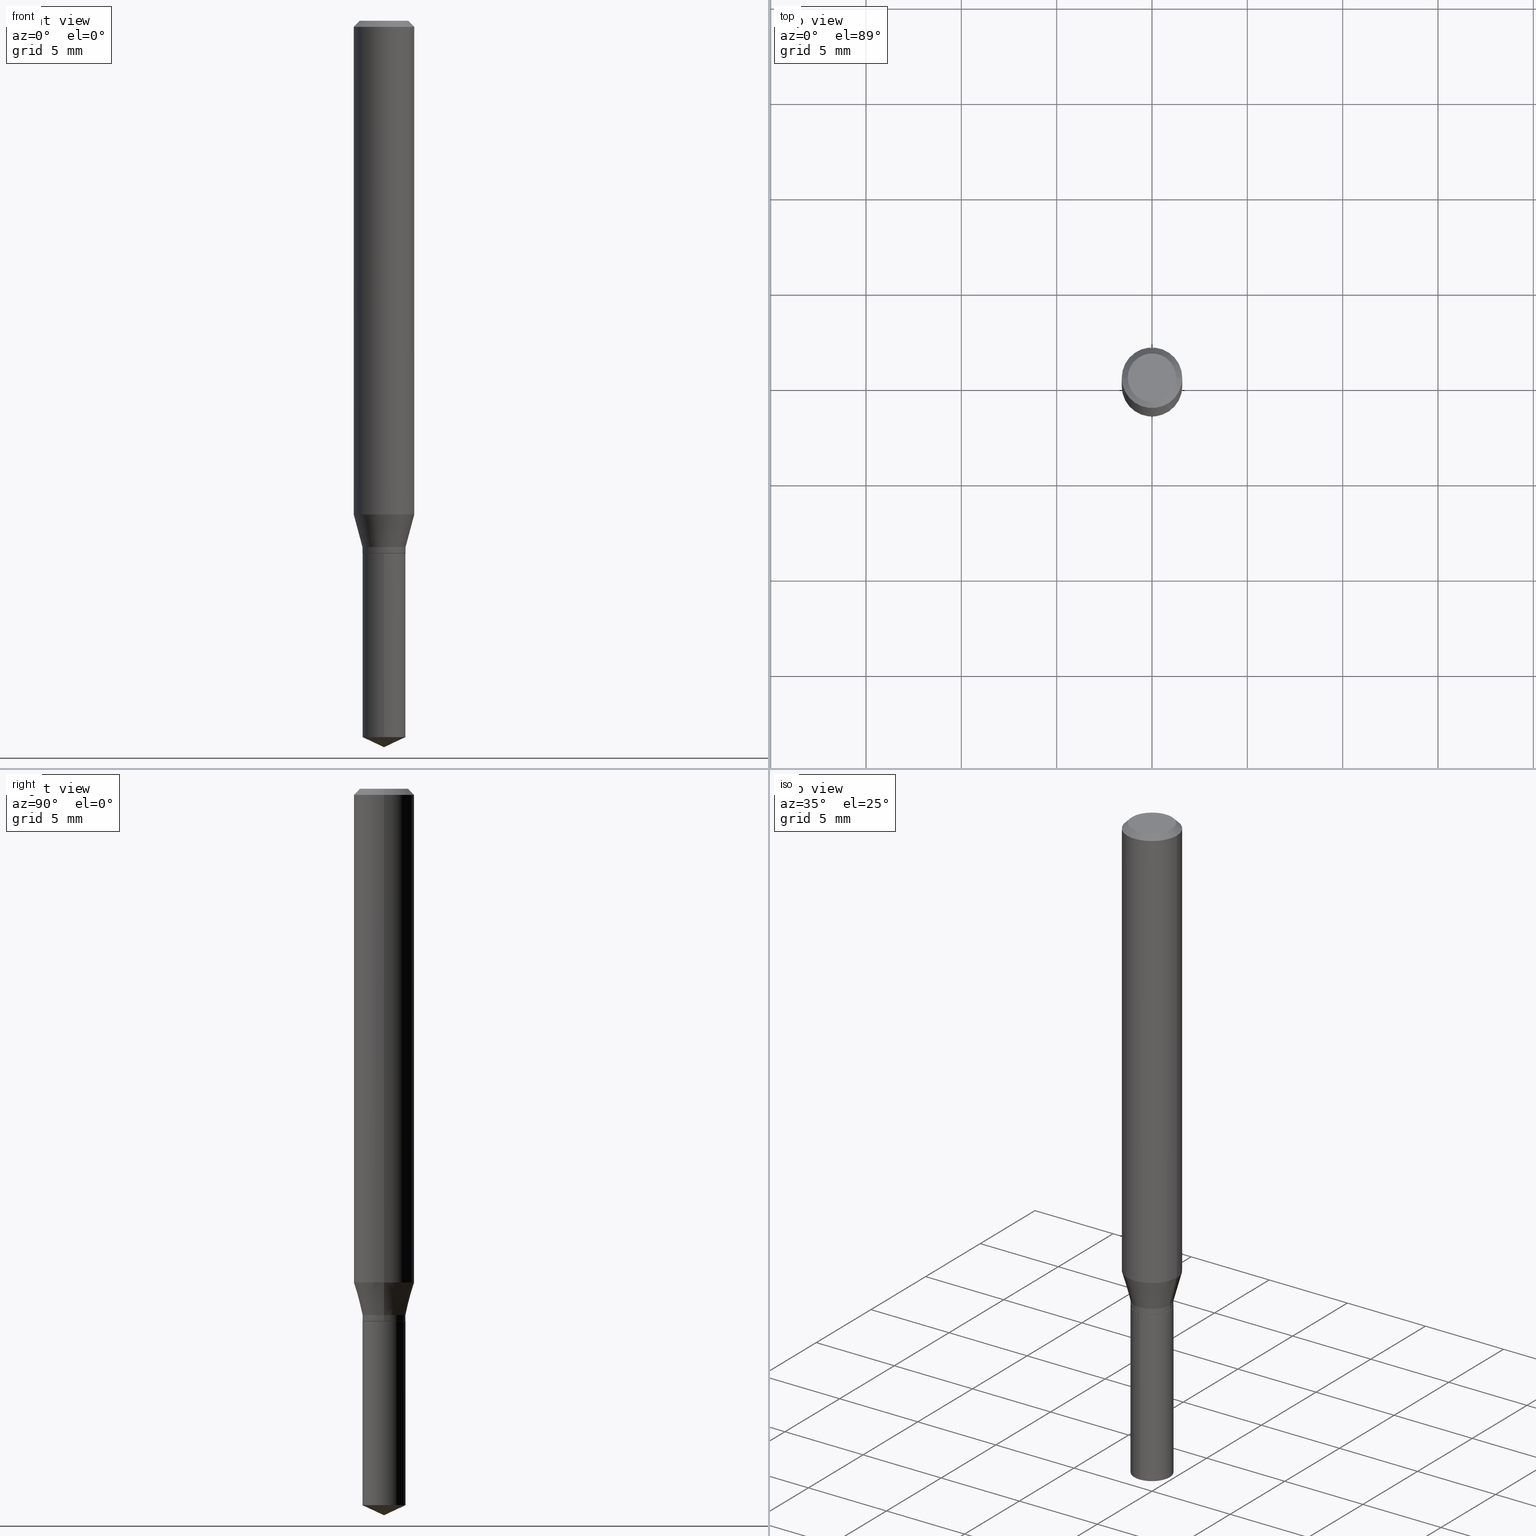
[diagram: canonical four-view strip — front | top / right | iso, engineering-drawing reading convention]
A machine part, canonical four-view strip (front | top / right | iso — engineering-drawing reading convention). The complete STEP part file that produces these views, byte-faithful:
ISO-10303-21;
HEADER;
FILE_DESCRIPTION (( 'STEP AP203' ),
    '1' );
FILE_NAME ('07366.STEP',
    '2024-04-23T20:46:41',
    ( '' ),
    ( '' ),
    'SwSTEP 2.0',
    'SolidWorks 2023',
    '' );
FILE_SCHEMA (( 'CONFIG_CONTROL_DESIGN' ));
ENDSEC;

DATA;
#1 = APPROVAL ( #476, 'UNSPECIFIED' ) ;
#2 = DIRECTION ( 'NONE',  ( -6.982962677686265922E-15, -1.000000000000000000, 6.138984255425310648E-15 ) ) ;
#3 = CALENDAR_DATE ( 2024, 23, 4 ) ;
#4 = DIRECTION ( 'NONE',  ( -2.445468806185136597E-29, 3.491481338843145583E-15, 1.000000000000000000 ) ) ;
#5 = AXIS2_PLACEMENT_3D ( 'NONE', #191, #232, #126 ) ;
#6 = EDGE_CURVE ( 'NONE', #120, #266, #114, .T. ) ;
#7 = EDGE_LOOP ( 'NONE', ( #80, #142, #286, #357 ) ) ;
#8 = FACE_OUTER_BOUND ( 'NONE', #7, .T. ) ;
#9 = EDGE_CURVE ( 'NONE', #449, #401, #156, .T. ) ;
#10 = CARTESIAN_POINT ( 'NONE',  ( -3.107418391570026875E-16, -0.04450000000000516043, -1.479249309212102403 ) ) ;
#11 = AXIS2_PLACEMENT_3D ( 'NONE', #474, #285, #143 ) ;
#12 = AXIS2_PLACEMENT_3D ( 'NONE', #192, #194, #36 ) ;
#13 = CARTESIAN_POINT ( 'NONE',  ( 0.04999999999999999584, -4.077247707424184705E-16, -1.592040838888913461E-18 ) ) ;
#14 = DIRECTION ( 'NONE',  ( 6.982962677686265922E-15, 1.000000000000000000, -3.491580316559632610E-15 ) ) ;
#15 = PRODUCT ( '07366', '07366', '', ( #119 ) ) ;
#16 = CARTESIAN_POINT ( 'NONE',  ( 3.056836007731442729E-31, -4.364351673553962300E-17, -0.01250000000000008916 ) ) ;
#17 = AXIS2_PLACEMENT_3D ( 'NONE', #16, #386, #206 ) ;
#18 = CARTESIAN_POINT ( 'NONE',  ( -0.06250000000000001388, 3.927916506198521080E-16, -0.01250000000000008916 ) ) ;
#19 = AXIS2_PLACEMENT_3D ( 'NONE', #477, #141, #293 ) ;
#20 = EDGE_CURVE ( 'NONE', #63, #219, #179, .T. ) ;
#21 = ORIENTED_EDGE ( 'NONE', *, *, #455, .T. ) ;
#22 = APPROVAL_ROLE ( '' ) ;
#23 = DIRECTION ( 'NONE',  ( 0.7071067811865453523, -7.319954787623248157E-15, -0.7071067811865496822 ) ) ;
#24 = EDGE_LOOP ( 'NONE', ( #73, #373, #297, #370 ) ) ;
#25 = SECURITY_CLASSIFICATION_LEVEL ( 'unclassified' ) ;
#26 = DIRECTION ( 'NONE',  ( 1.000000000000000000, -6.982962677686267499E-15, 0.000000000000000000 ) ) ;
#27 = ORIENTED_EDGE ( 'NONE', *, *, #393, .F. ) ;
#28 = APPROVAL_ROLE ( '' ) ;
#29 = CARTESIAN_POINT ( 'NONE',  ( 3.617431830141075089E-29, -5.164808895841274999E-15, -1.479249309212102625 ) ) ;
#30 = LOCAL_TIME ( 16, 46, 41.00000000000000000, #103 ) ;
#31 = ORIENTED_EDGE ( 'NONE', *, *, #376, .F. ) ;
#32 = EDGE_CURVE ( 'NONE', #335, #41, #311, .T. ) ;
#33 = CARTESIAN_POINT ( 'NONE',  ( 0.000000000000000000, 0.000000000000000000, 0.000000000000000000 ) ) ;
#34 = ORIENTED_EDGE ( 'NONE', *, *, #424, .T. ) ;
#35 = DATE_AND_TIME ( #249, #277 ) ;
#36 = DIRECTION ( 'NONE',  ( -6.982962677686265922E-15, -1.000000000000000000, 3.069492127712655324E-15 ) ) ;
#37 = ORIENTED_EDGE ( 'NONE', *, *, #99, .F. ) ;
#38 = COORDINATED_UNIVERSAL_TIME_OFFSET ( 5, 0, .BEHIND. ) ;
#39 = CARTESIAN_POINT ( 'NONE',  ( -0.04449999999999999789, -3.477652105373717759E-15, -1.086600000000000010 ) ) ;
#40 = VECTOR ( 'NONE', #336, 39.37007874015748143 ) ;
#41 = VERTEX_POINT ( 'NONE', #306 ) ;
#42 = PERSON_AND_ORGANIZATION ( #305, #478 ) ;
#43 = CARTESIAN_POINT ( 'NONE',  ( 2.690015686803650369E-29, -3.840629472727460101E-15, -1.100000000000000089 ) ) ;
#44 = CARTESIAN_POINT ( 'NONE',  ( 3.893286209682126177E-47, -5.558580879666067980E-33, -1.592040838891559689E-18 ) ) ;
#45 = AXIS2_PLACEMENT_3D ( 'NONE', #91, #467, #469 ) ;
#46 = CIRCLE ( 'NONE', #402, 0.04449999999999999789 ) ;
#47 = EDGE_CURVE ( 'NONE', #182, #109, #202, .T. ) ;
#48 = LINE ( 'NONE', #201, #420 ) ;
#49 = CARTESIAN_POINT ( 'NONE',  ( 3.668099535622682155E-29, -5.237370474839448718E-15, -1.500000000000000222 ) ) ;
#50 = DIRECTION ( 'NONE',  ( -6.982962677686265922E-15, -1.000000000000000000, 3.069492127712655324E-15 ) ) ;
#51 = ADVANCED_FACE ( 'NONE', ( #228 ), #238, .T. ) ;
#52 = VECTOR ( 'NONE', #89, 39.37007874015748143 ) ;
#53 = PRODUCT_DEFINITION_FORMATION_WITH_SPECIFIED_SOURCE ( 'ANY', '', #15, .NOT_KNOWN. ) ;
#54 = CARTESIAN_POINT ( 'NONE',  ( 0.04399999999999999745, -4.147879830545655774E-15, -1.100000000000000089 ) ) ;
#55 = ORIENTED_EDGE ( 'NONE', *, *, #20, .F. ) ;
#56 = PLANE ( 'NONE',  #314 ) ;
#57 = EDGE_LOOP ( 'NONE', ( #135, #404, #300, #96 ) ) ;
#58 = ADVANCED_FACE ( 'NONE', ( #85 ), #271, .T. ) ;
#59 = DIRECTION ( 'NONE',  ( -2.445468806185136597E-29, 3.491481338843145583E-15, 1.000000000000000000 ) ) ;
#60 = AXIS2_PLACEMENT_3D ( 'NONE', #354, #129, #280 ) ;
#61 = CARTESIAN_POINT ( 'NONE',  ( 0.04449999999999999789, -4.104585461944000907E-15, -1.086600000000000010 ) ) ;
#62 = CIRCLE ( 'NONE', #239, 0.06250000000000001388 ) ;
#63 = VERTEX_POINT ( 'NONE', #487 ) ;
#64 = DIRECTION ( 'NONE',  ( -2.445468806185136597E-29, 3.491481338843145583E-15, 1.000000000000000000 ) ) ;
#65 = ADVANCED_FACE ( 'NONE', ( #153 ), #302, .T. ) ;
#66 = ORIENTED_EDGE ( 'NONE', *, *, #167, .T. ) ;
#67 = DATE_TIME_ROLE ( 'classification_date' ) ;
#68 = CARTESIAN_POINT ( 'NONE',  ( 3.161915174132713890E-16, 0.04449999999999615374, -1.100000000000000089 ) ) ;
#69 = ORIENTED_EDGE ( 'NONE', *, *, #279, .T. ) ;
#70 = APPLICATION_CONTEXT ( 'configuration controlled 3d designs of mechanical parts and assemblies' ) ;
#71 = CARTESIAN_POINT ( 'NONE',  ( -0.04449999999999999789, -3.500172160009255549E-15, -1.086600000000000010 ) ) ;
#72 = CIRCLE ( 'NONE', #123, 0.06250000000000001388 ) ;
#73 = ORIENTED_EDGE ( 'NONE', *, *, #213, .F. ) ;
#74 = APPLICATION_PROTOCOL_DEFINITION ( 'international standard', 'config_control_design', 1994, #92 ) ;
#75 = ORIENTED_EDGE ( 'NONE', *, *, #225, .T. ) ;
#76 = LENGTH_MEASURE_WITH_UNIT ( LENGTH_MEASURE( 0.02539999999999999897 ), #343 );
#77 = ADVANCED_FACE ( 'NONE', ( #307 ), #254, .T. ) ;
#78 = DIRECTION ( 'NONE',  ( -2.445468806185136597E-29, 3.491481338843145583E-15, 1.000000000000000000 ) ) ;
#79 = CARTESIAN_POINT ( 'NONE',  ( -0.04399999999999999745, -3.525341441818904541E-15, -1.100000000000000089 ) ) ;
#80 = ORIENTED_EDGE ( 'NONE', *, *, #279, .F. ) ;
#81 = AXIS2_PLACEMENT_3D ( 'NONE', #44, #382, #150 ) ;
#82 = DIRECTION ( 'NONE',  ( 0.000000000000000000, 0.000000000000000000, 1.000000000000000000 ) ) ;
#83 = CARTESIAN_POINT ( 'NONE',  ( 3.668099535622682715E-29, -5.237370474839449507E-15, -1.500000000000000222 ) ) ;
#84 = EDGE_CURVE ( 'NONE', #155, #475, #162, .T. ) ;
#85 = FACE_OUTER_BOUND ( 'NONE', #450, .T. ) ;
#86 = DIRECTION ( 'NONE',  ( -2.445399690415121530E-29, 3.491580316559632610E-15, 1.000000000000000000 ) ) ;
#87 = CIRCLE ( 'NONE', #488, 0.04449999999999999789 ) ;
#88 = AXIS2_PLACEMENT_3D ( 'NONE', #415, #413, #268 ) ;
#89 = DIRECTION ( 'NONE',  ( -2.445399690415121810E-29, 3.491580316559632610E-15, 1.000000000000000000 ) ) ;
#90 = CYLINDRICAL_SURFACE ( 'NONE', #45, 0.06250000000000006939 ) ;
#91 = CARTESIAN_POINT ( 'NONE',  ( 0.000000000000000000, 0.000000000000000000, 0.000000000000000000 ) ) ;
#92 = APPLICATION_CONTEXT ( 'configuration controlled 3d designs of mechanical parts and assemblies' ) ;
#93 = CLOSED_SHELL ( 'NONE', ( #121, #77, #284, #116, #147 ) ) ;
#94 = CONICAL_SURFACE ( 'NONE', #391, 0.06250000000000001388, 0.7853981633974452814 ) ;
#95 = FACE_OUTER_BOUND ( 'NONE', #392, .T. ) ;
#96 = ORIENTED_EDGE ( 'NONE', *, *, #424, .F. ) ;
#97 = ADVANCED_FACE ( 'NONE', ( #304 ), #468, .T. ) ;
#98 = DIRECTION ( 'NONE',  ( 1.000000000000000000, -6.982962677686265922E-15, 4.876176775795935232E-29 ) ) ;
#99 = EDGE_CURVE ( 'NONE', #267, #248, #118, .T. ) ;
#100 = DIRECTION ( 'NONE',  ( -2.445468806185136597E-29, 3.491481338843145583E-15, 1.000000000000000000 ) ) ;
#101 = ORIENTED_EDGE ( 'NONE', *, *, #396, .F. ) ;
#102 = MANIFOLD_SOLID_BREP ( 'Body-Move/Copy2[1]', #93 ) ;
#103 = COORDINATED_UNIVERSAL_TIME_OFFSET ( 5, 0, .BEHIND. ) ;
#104 = VECTOR ( 'NONE', #130, 39.37007874015748854 ) ;
#105 = AXIS2_PLACEMENT_3D ( 'NONE', #33, #184, #98 ) ;
#106 = CARTESIAN_POINT ( 'NONE',  ( 0.06250000000000012490, -3.995731846638011698E-15, -1.019423085463760037 ) ) ;
#107 = VERTEX_POINT ( 'NONE', #83 ) ;
#108 = LINE ( 'NONE', #230, #180 ) ;
#109 = VERTEX_POINT ( 'NONE', #205 ) ;
#110 = MANIFOLD_SOLID_BREP ( 'Body-Move/Copy2[2]', #289 ) ;
#111 = CARTESIAN_POINT ( 'NONE',  ( 3.056836007731442729E-31, -4.364351673553962300E-17, -0.01250000000000008916 ) ) ;
#112 = ORIENTED_EDGE ( 'NONE', *, *, #9, .T. ) ;
#113 =( CONVERSION_BASED_UNIT ( 'INCH', #76 ) LENGTH_UNIT ( ) NAMED_UNIT ( #473 ) );
#114 = CIRCLE ( 'NONE', #81, 0.04999999999999999584 ) ;
#115 = EDGE_LOOP ( 'NONE', ( #166, #423, #34, #262 ) ) ;
#116 = ADVANCED_FACE ( 'NONE', ( #8 ), #352, .T. ) ;
#117 = DATE_AND_TIME ( #303, #211 ) ;
#118 = LINE ( 'NONE', #39, #149 ) ;
#119 = MECHANICAL_CONTEXT ( 'NONE', #70, 'mechanical' ) ;
#120 = VERTEX_POINT ( 'NONE', #13 ) ;
#121 = ADVANCED_FACE ( 'NONE', ( #276 ), #200, .T. ) ;
#122 = DIRECTION ( 'NONE',  ( -0.2588190451025211836, 5.211531920934547886E-15, 0.9659258262890679791 ) ) ;
#123 = AXIS2_PLACEMENT_3D ( 'NONE', #295, #64, #287 ) ;
#124 = CARTESIAN_POINT ( 'NONE',  ( 0.06250000000000006939, -4.364351673553921624E-16, 3.047610484872463374E-30 ) ) ;
#125 = EDGE_CURVE ( 'NONE', #107, #109, #48, .T. ) ;
#126 = DIRECTION ( 'NONE',  ( 1.000000000000000000, -6.982962677686267499E-15, 0.000000000000000000 ) ) ;
#127 = DIRECTION ( 'NONE',  ( 2.445399690415121250E-29, -3.491580316559632610E-15, -1.000000000000000000 ) ) ;
#128 = LINE ( 'NONE', #319, #264 ) ;
#129 = DIRECTION ( 'NONE',  ( -2.445468806185136597E-29, 3.491481338843145583E-15, 1.000000000000000000 ) ) ;
#130 = DIRECTION ( 'NONE',  ( 0.2588190451025211836, 1.565188264969622559E-15, 0.9659258262890679791 ) ) ;
#131 = AXIS2_PLACEMENT_3D ( 'NONE', #161, #318, #430 ) ;
#132 = LINE ( 'NONE', #389, #104 ) ;
#133 = ADVANCED_FACE ( 'NONE', ( #168 ), #199, .F. ) ;
#134 = DIRECTION ( 'NONE',  ( -2.445468806185136877E-29, 3.491481338843145188E-15, 1.000000000000000000 ) ) ;
#135 = ORIENTED_EDGE ( 'NONE', *, *, #6, .F. ) ;
#136 = CARTESIAN_POINT ( 'NONE',  ( 3.893286209682126177E-47, -5.558580879666067980E-33, -1.592040838891559689E-18 ) ) ;
#137 = ORIENTED_EDGE ( 'NONE', *, *, #393, .T. ) ;
#138 = AXIS2_PLACEMENT_3D ( 'NONE', #240, #164, #281 ) ;
#139 = EDGE_CURVE ( 'NONE', #182, #449, #242, .T. ) ;
#140 = CIRCLE ( 'NONE', #190, 0.04449999999999999789 ) ;
#141 = DIRECTION ( 'NONE',  ( -2.445468806185136597E-29, 3.491481338843145583E-15, 1.000000000000000000 ) ) ;
#142 = ORIENTED_EDGE ( 'NONE', *, *, #376, .T. ) ;
#143 = DIRECTION ( 'NONE',  ( -6.982962677686267499E-15, -1.000000000000000000, 3.520397390770472803E-15 ) ) ;
#144 = ORIENTED_EDGE ( 'NONE', *, *, #84, .F. ) ;
#145 = DIRECTION ( 'NONE',  ( 2.445468806185136597E-29, -3.491481338843145583E-15, -1.000000000000000000 ) ) ;
#146 = ORIENTED_EDGE ( 'NONE', *, *, #32, .T. ) ;
#147 = ADVANCED_FACE ( 'NONE', ( #435 ), #56, .F. ) ;
#148 = FACE_OUTER_BOUND ( 'NONE', #414, .T. ) ;
#149 = VECTOR ( 'NONE', #122, 39.37007874015748854 ) ;
#150 = DIRECTION ( 'NONE',  ( 1.000000000000000000, -6.982962677686265922E-15, 4.875957971899673662E-29 ) ) ;
#151 =( NAMED_UNIT ( * ) PLANE_ANGLE_UNIT ( ) SI_UNIT ( $, .RADIAN. ) );
#152 = CARTESIAN_POINT ( 'NONE',  ( 2.690015686803650369E-29, -3.840629472727460101E-15, -1.100000000000000089 ) ) ;
#153 = FACE_OUTER_BOUND ( 'NONE', #454, .T. ) ;
#154 = CC_DESIGN_PERSON_AND_ORGANIZATION_ASSIGNMENT ( #42, #299, ( #233 ) ) ;
#155 = VERTEX_POINT ( 'NONE', #54 ) ;
#156 = CIRCLE ( 'NONE', #353, 0.04449999999999999789 ) ;
#157 = LOCAL_TIME ( 16, 46, 41.00000000000000000, #480 ) ;
#158 = DIRECTION ( 'NONE',  ( -2.445468806185136597E-29, 3.491481338843145583E-15, 1.000000000000000000 ) ) ;
#159 = CARTESIAN_POINT ( 'NONE',  ( 2.690015686803650369E-29, -3.840629472727460101E-15, -1.100000000000000089 ) ) ;
#160 = ADVANCED_FACE ( 'NONE', ( #388 ), #331, .T. ) ;
#161 = CARTESIAN_POINT ( 'NONE',  ( 1.946643104841063088E-47, -2.779290439833033990E-33, -7.960204194457798443E-19 ) ) ;
#162 = CIRCLE ( 'NONE', #434, 0.04399999999999999745 ) ;
#163 = AXIS2_PLACEMENT_3D ( 'NONE', #136, #222, #409 ) ;
#164 = DIRECTION ( 'NONE',  ( -2.445399690415121530E-29, 3.491580316559632610E-15, 1.000000000000000000 ) ) ;
#165 = DIRECTION ( 'NONE',  ( -6.328713451373368590E-15, -0.9063077870366483824, 0.4226182617407029940 ) ) ;
#166 = ORIENTED_EDGE ( 'NONE', *, *, #320, .F. ) ;
#167 = EDGE_CURVE ( 'NONE', #475, #219, #313, .T. ) ;
#168 = FACE_OUTER_BOUND ( 'NONE', #174, .T. ) ;
#169 = CIRCLE ( 'NONE', #60, 0.04399999999999999745 ) ;
#170 = DIRECTION ( 'NONE',  ( -2.445468806185136597E-29, 3.491481338843145583E-15, 1.000000000000000000 ) ) ;
#171 = ORIENTED_EDGE ( 'NONE', *, *, #412, .F. ) ;
#172 = PERSON_AND_ORGANIZATION ( #305, #478 ) ;
#173 = DIRECTION ( 'NONE',  ( -2.445399690415121810E-29, 3.491580316559632610E-15, 1.000000000000000000 ) ) ;
#174 = EDGE_LOOP ( 'NONE', ( #235, #312 ) ) ;
#175 = EDGE_CURVE ( 'NONE', #107, #182, #466, .T. ) ;
#176 = DIRECTION ( 'NONE',  ( 1.000000000000000000, -6.982962677686265922E-15, 0.000000000000000000 ) ) ;
#177 = EDGE_LOOP ( 'NONE', ( #193, #472, #288, #101 ) ) ;
#178 = SHAPE_DEFINITION_REPRESENTATION ( #351, #204 ) ;
#179 = CIRCLE ( 'NONE', #428, 0.04449999999999999789 ) ;
#180 = VECTOR ( 'NONE', #188, 39.37007874015748143 ) ;
#181 = FACE_OUTER_BOUND ( 'NONE', #57, .T. ) ;
#182 = VERTEX_POINT ( 'NONE', #10 ) ;
#183 = PERSON_AND_ORGANIZATION ( #305, #478 ) ;
#184 = DIRECTION ( 'NONE',  ( -2.445468806185136597E-29, 3.491481338843145583E-15, 1.000000000000000000 ) ) ;
#185 = ORIENTED_EDGE ( 'NONE', *, *, #427, .T. ) ;
#186 = APPROVAL_ROLE ( '' ) ;
#187 = CARTESIAN_POINT ( 'NONE',  ( 2.690015686803650369E-29, -3.840629472727460101E-15, -1.100000000000000089 ) ) ;
#188 = DIRECTION ( 'NONE',  ( -2.445468806185136877E-29, 3.491481338843145188E-15, 1.000000000000000000 ) ) ;
#189 = VECTOR ( 'NONE', #259, 39.37007874015748854 ) ;
#190 = AXIS2_PLACEMENT_3D ( 'NONE', #215, #100, #218 ) ;
#191 = CARTESIAN_POINT ( 'NONE',  ( 2.657246404800769679E-29, -3.793843622786962228E-15, -1.086600000000000010 ) ) ;
#192 = CARTESIAN_POINT ( 'NONE',  ( 2.690015686803650369E-29, -3.840629472727460101E-15, -1.100000000000000089 ) ) ;
#193 = ORIENTED_EDGE ( 'NONE', *, *, #167, .F. ) ;
#194 = DIRECTION ( 'NONE',  ( -2.445399690415121530E-29, 3.491580316559632610E-15, 1.000000000000000000 ) ) ;
#195 = EDGE_LOOP ( 'NONE', ( #482, #66, #55, #330 ) ) ;
#196 = CARTESIAN_POINT ( 'NONE',  ( 3.617431830141075089E-29, -5.164808895841274999E-15, -1.479249309212102625 ) ) ;
#197 = VECTOR ( 'NONE', #165, 39.37007874015748143 ) ;
#198 = CC_DESIGN_PERSON_AND_ORGANIZATION_ASSIGNMENT ( #172, #451, ( #489 ) ) ;
#199 = PLANE ( 'NONE',  #131 ) ;
#200 = CYLINDRICAL_SURFACE ( 'NONE', #138, 0.04449999999999999789 ) ;
#201 = CARTESIAN_POINT ( 'NONE',  ( 3.668252923656895710E-29, -5.237152723863177100E-15, -1.500000000000000222 ) ) ;
#202 = CIRCLE ( 'NONE', #457, 0.04449999999999999789 ) ;
#203 = ADVANCED_FACE ( 'NONE', ( #315 ), #358, .F. ) ;
#204 = ADVANCED_BREP_SHAPE_REPRESENTATION ( '07366', ( #102, #110, #316 ), #341 ) ;
#205 = CARTESIAN_POINT ( 'NONE',  ( 3.161915174132806581E-16, 0.04449999999999482841, -1.479249309212102848 ) ) ;
#206 = DIRECTION ( 'NONE',  ( -1.000000000000000000, 6.982962677686265922E-15, 0.000000000000000000 ) ) ;
#207 = CARTESIAN_POINT ( 'NONE',  ( 2.492967355806629437E-29, -3.559296679282619240E-15, -1.019423085463760037 ) ) ;
#208 = ORIENTED_EDGE ( 'NONE', *, *, #47, .F. ) ;
#209 = AXIS2_PLACEMENT_3D ( 'NONE', #159, #86, #50 ) ;
#210 = PERSON_AND_ORGANIZATION ( #305, #478 ) ;
#211 = LOCAL_TIME ( 16, 46, 41.00000000000000000, #459 ) ;
#212 = DIRECTION ( 'NONE',  ( 1.000000000000000000, -6.982962677686264344E-15, 0.000000000000000000 ) ) ;
#213 = EDGE_CURVE ( 'NONE', #219, #267, #128, .T. ) ;
#214 = ORIENTED_EDGE ( 'NONE', *, *, #99, .T. ) ;
#215 = CARTESIAN_POINT ( 'NONE',  ( 2.657246404800769679E-29, -3.793843622786962228E-15, -1.086600000000000010 ) ) ;
#216 = ORIENTED_EDGE ( 'NONE', *, *, #308, .F. ) ;
#217 = PERSON_AND_ORGANIZATION_ROLE ( 'creator' ) ;
#218 = DIRECTION ( 'NONE',  ( 1.000000000000000000, -6.982962677686267499E-15, 0.000000000000000000 ) ) ;
#219 = VERTEX_POINT ( 'NONE', #431 ) ;
#220 = ADVANCED_FACE ( 'NONE', ( #95 ), #90, .T. ) ;
#221 = CC_DESIGN_SECURITY_CLASSIFICATION ( #489, ( #53 ) ) ;
#222 = DIRECTION ( 'NONE',  ( -2.445468806185136597E-29, 3.491481338843145583E-15, 1.000000000000000000 ) ) ;
#223 = ORIENTED_EDGE ( 'NONE', *, *, #241, .F. ) ;
#224 = DATE_TIME_ROLE ( 'creation_date' ) ;
#225 = EDGE_CURVE ( 'NONE', #342, #335, #132, .T. ) ;
#226 = CYLINDRICAL_SURFACE ( 'NONE', #88, 0.06250000000000006939 ) ;
#227 = DIRECTION ( 'NONE',  ( -6.982962677686267499E-15, -1.000000000000000000, 3.520397390770472803E-15 ) ) ;
#228 = FACE_OUTER_BOUND ( 'NONE', #177, .T. ) ;
#229 = AXIS2_PLACEMENT_3D ( 'NONE', #274, #4, #236 ) ;
#230 = CARTESIAN_POINT ( 'NONE',  ( -0.06250000000000006939, 4.440892098500631092E-16, -3.074334431409319267E-30 ) ) ;
#231 = CIRCLE ( 'NONE', #322, 0.04449999999999999789 ) ;
#232 = DIRECTION ( 'NONE',  ( -2.445468806185136597E-29, 3.491481338843145583E-15, 1.000000000000000000 ) ) ;
#233 = PRODUCT_DEFINITION ( 'UNKNOWN', '', #53, #470 ) ;
#234 = PERSON_AND_ORGANIZATION_ROLE ( 'design_owner' ) ;
#235 = ORIENTED_EDGE ( 'NONE', *, *, #327, .T. ) ;
#236 = DIRECTION ( 'NONE',  ( 1.000000000000000000, -6.982962677686267499E-15, 0.000000000000000000 ) ) ;
#237 = DIRECTION ( 'NONE',  ( 1.000000000000000000, -6.982962677686267499E-15, 0.000000000000000000 ) ) ;
#238 = CONICAL_SURFACE ( 'NONE', #361, 0.04399999999999999745, 0.7853981633974141952 ) ;
#239 = AXIS2_PLACEMENT_3D ( 'NONE', #484, #59, #176 ) ;
#240 = CARTESIAN_POINT ( 'NONE',  ( 2.690015686803650369E-29, -3.840629472727460101E-15, -1.100000000000000089 ) ) ;
#241 = EDGE_CURVE ( 'NONE', #475, #155, #169, .T. ) ;
#242 = LINE ( 'NONE', #463, #52 ) ;
#243 = CARTESIAN_POINT ( 'NONE',  ( 2.657246404800769679E-29, -3.793843622786962228E-15, -1.086600000000000010 ) ) ;
#244 = CIRCLE ( 'NONE', #12, 0.04449999999999999789 ) ;
#245 = CARTESIAN_POINT ( 'NONE',  ( 2.690015686803650369E-29, -3.840629472727460101E-15, -1.100000000000000089 ) ) ;
#246 = ORIENTED_EDGE ( 'NONE', *, *, #9, .F. ) ;
#247 = CYLINDRICAL_SURFACE ( 'NONE', #105, 0.04449999999999999789 ) ;
#248 = VERTEX_POINT ( 'NONE', #433 ) ;
#249 = CALENDAR_DATE ( 2024, 23, 4 ) ;
#250 = EDGE_CURVE ( 'NONE', #267, #342, #87, .T. ) ;
#251 = DIRECTION ( 'NONE',  ( -2.445399690415121530E-29, 3.491580316559632610E-15, 1.000000000000000000 ) ) ;
#252 = UNCERTAINTY_MEASURE_WITH_UNIT (LENGTH_MEASURE( 1.000000000000000082E-05 ), #113, 'distance_accuracy_value', 'NONE');
#253 = ORIENTED_EDGE ( 'NONE', *, *, #175, .F. ) ;
#254 = CONICAL_SURFACE ( 'NONE', #464, 84.42940631927388040, 1.134464013796313786 ) ;
#255 = COORDINATED_UNIVERSAL_TIME_OFFSET ( 5, 0, .BEHIND. ) ;
#256 = APPROVAL_PERSON_ORGANIZATION ( #483, #1, #22 ) ;
#257 = DIRECTION ( 'NONE',  ( -6.982962677686265922E-15, -1.000000000000000000, 6.138984255425310648E-15 ) ) ;
#258 = ORIENTED_EDGE ( 'NONE', *, *, #437, .T. ) ;
#259 = DIRECTION ( 'NONE',  ( 0.7071067811865232589, -2.468850131082003836E-15, 0.7071067811865715536 ) ) ;
#260 = EDGE_LOOP ( 'NONE', ( #490, #337, #446, #398 ) ) ;
#261 = LINE ( 'NONE', #18, #40 ) ;
#262 = ORIENTED_EDGE ( 'NONE', *, *, #412, .T. ) ;
#263 = PRODUCT_RELATED_PRODUCT_CATEGORY ( 'detail', '', ( #15 ) ) ;
#264 = VECTOR ( 'NONE', #278, 39.37007874015748143 ) ;
#265 = DATE_AND_TIME ( #3, #429 ) ;
#266 = VERTEX_POINT ( 'NONE', #397 ) ;
#267 = VERTEX_POINT ( 'NONE', #71 ) ;
#268 = DIRECTION ( 'NONE',  ( 1.000000000000000000, -6.982962677686266711E-15, 4.876176775795935793E-29 ) ) ;
#269 = CC_DESIGN_PERSON_AND_ORGANIZATION_ASSIGNMENT ( #366, #217, ( #53 ) ) ;
#270 = EDGE_LOOP ( 'NONE', ( #326, #365, #31 ) ) ;
#271 = CONICAL_SURFACE ( 'NONE', #229, 0.04449999999999999789, 0.2617993877991499074 ) ;
#272 = CC_DESIGN_APPROVAL ( #347, ( #233 ) ) ;
#273 = ORIENTED_EDGE ( 'NONE', *, *, #296, .T. ) ;
#274 = CARTESIAN_POINT ( 'NONE',  ( 2.657246404800769679E-29, -3.793843622786962228E-15, -1.086600000000000010 ) ) ;
#275 = CARTESIAN_POINT ( 'NONE',  ( -9.260740279983036507E-28, 1.322265303911854087E-13, 37.87007874015748143 ) ) ;
#276 = FACE_OUTER_BOUND ( 'NONE', #362, .T. ) ;
#277 = LOCAL_TIME ( 16, 46, 41.00000000000000000, #255 ) ;
#278 = DIRECTION ( 'NONE',  ( -2.445468806185136877E-29, 3.491481338843145188E-15, 1.000000000000000000 ) ) ;
#279 = EDGE_CURVE ( 'NONE', #109, #401, #406, .T. ) ;
#280 = DIRECTION ( 'NONE',  ( 1.000000000000000000, -6.982962677686266711E-15, 0.000000000000000000 ) ) ;
#281 = DIRECTION ( 'NONE',  ( -6.982962677686265922E-15, -1.000000000000000000, 3.069492127712655324E-15 ) ) ;
#282 = AXIS2_PLACEMENT_3D ( 'NONE', #43, #456, #452 ) ;
#283 = DIRECTION ( 'NONE',  ( 1.000000000000000000, -6.982962677686265922E-15, 4.876176775795935793E-29 ) ) ;
#284 = ADVANCED_FACE ( 'NONE', ( #325 ), #443, .T. ) ;
#285 = DIRECTION ( 'NONE',  ( -2.445399690415121530E-29, 3.491580316559632610E-15, 1.000000000000000000 ) ) ;
#286 = ORIENTED_EDGE ( 'NONE', *, *, #139, .T. ) ;
#287 = DIRECTION ( 'NONE',  ( 1.000000000000000000, -6.982962677686265922E-15, 0.000000000000000000 ) ) ;
#288 = ORIENTED_EDGE ( 'NONE', *, *, #292, .T. ) ;
#289 = CLOSED_SHELL ( 'NONE', ( #97, #387, #448, #65, #417, #432, #58, #220, #160, #133, #203, #51 ) ) ;
#290 = VECTOR ( 'NONE', #23, 39.37007874015748143 ) ;
#291 = CALENDAR_DATE ( 2024, 23, 4 ) ;
#292 = EDGE_CURVE ( 'NONE', #155, #63, #439, .T. ) ;
#293 = DIRECTION ( 'NONE',  ( 1.000000000000000000, -6.982962677686265922E-15, 4.876176775795935232E-29 ) ) ;
#294 = ORIENTED_EDGE ( 'NONE', *, *, #139, .F. ) ;
#295 = CARTESIAN_POINT ( 'NONE',  ( 3.056836007731442729E-31, -4.364351673553962300E-17, -0.01250000000000008916 ) ) ;
#296 = EDGE_CURVE ( 'NONE', #342, #267, #140, .T. ) ;
#297 = ORIENTED_EDGE ( 'NONE', *, *, #394, .T. ) ;
#298 = APPROVAL_DATE_TIME ( #328, #1 ) ;
#299 = PERSON_AND_ORGANIZATION_ROLE ( 'creator' ) ;
#300 = ORIENTED_EDGE ( 'NONE', *, *, #308, .T. ) ;
#301 = PERSON_AND_ORGANIZATION_ROLE ( 'design_supplier' ) ;
#302 = CONICAL_SURFACE ( 'NONE', #5, 0.04449999999999999789, 0.2617993877991499074 ) ;
#303 = CALENDAR_DATE ( 2024, 23, 4 ) ;
#304 = FACE_OUTER_BOUND ( 'NONE', #195, .T. ) ;
#305 = PERSON ( 'UNSPECIFIED', 'UNSPECIFIED', 'UNSPECIFIED', ('UNSPECIFIED'), ('UNSPECIFIED'), ('UNSPECIFIED') ) ;
#306 = CARTESIAN_POINT ( 'NONE',  ( 0.06250000000000001388, -4.800786840909313294E-16, -0.01250000000000008916 ) ) ;
#307 = FACE_OUTER_BOUND ( 'NONE', #407, .T. ) ;
#308 = EDGE_CURVE ( 'NONE', #41, #368, #72, .T. ) ;
#309 = DIRECTION ( 'NONE',  ( 1.000000000000000000, 0.000000000000000000, 0.000000000000000000 ) ) ;
#310 = CC_DESIGN_APPROVAL ( #359, ( #53 ) ) ;
#311 = LINE ( 'NONE', #124, #400 ) ;
#312 = ORIENTED_EDGE ( 'NONE', *, *, #6, .T. ) ;
#313 = LINE ( 'NONE', #356, #411 ) ;
#314 = AXIS2_PLACEMENT_3D ( 'NONE', #245, #127, #14 ) ;
#315 = FACE_OUTER_BOUND ( 'NONE', #440, .T. ) ;
#316 = AXIS2_PLACEMENT_3D ( 'NONE', #422, #82, #309 ) ;
#317 = CIRCLE ( 'NONE', #355, 0.06250000000000012490 ) ;
#318 = DIRECTION ( 'NONE',  ( 2.438088387897960049E-29, -3.491481338843145188E-15, -1.000000000000000000 ) ) ;
#319 = CARTESIAN_POINT ( 'NONE',  ( -0.04449999999999999789, 3.161915174132445677E-16, -2.188926115163433020E-30 ) ) ;
#320 = EDGE_CURVE ( 'NONE', #120, #41, #442, .T. ) ;
#321 = DIRECTION ( 'NONE',  ( -2.438088387897960049E-29, 3.491481338843145188E-15, 1.000000000000000000 ) ) ;
#322 = AXIS2_PLACEMENT_3D ( 'NONE', #372, #360, #26 ) ;
#323 = CARTESIAN_POINT ( 'NONE',  ( 0.04449999999999999789, -3.107418391570388272E-16, 2.169898665229191063E-30 ) ) ;
#324 = EDGE_LOOP ( 'NONE', ( #112, #21 ) ) ;
#325 = FACE_OUTER_BOUND ( 'NONE', #270, .T. ) ;
#326 = ORIENTED_EDGE ( 'NONE', *, *, #125, .F. ) ;
#327 = EDGE_CURVE ( 'NONE', #266, #120, #421, .T. ) ;
#328 = DATE_AND_TIME ( #405, #157 ) ;
#329 = FACE_OUTER_BOUND ( 'NONE', #24, .T. ) ;
#330 = ORIENTED_EDGE ( 'NONE', *, *, #292, .F. ) ;
#331 = CONICAL_SURFACE ( 'NONE', #17, 0.06250000000000001388, 0.7853981633974452814 ) ;
#332 = VECTOR ( 'NONE', #134, 39.37007874015748143 ) ;
#333 = CC_DESIGN_DATE_AND_TIME_ASSIGNMENT ( #35, #67, ( #489 ) ) ;
#334 = DIRECTION ( 'NONE',  ( -1.000000000000000000, 6.982962677686265922E-15, 0.000000000000000000 ) ) ;
#335 = VERTEX_POINT ( 'NONE', #106 ) ;
#336 = DIRECTION ( 'NONE',  ( -0.7071067811865453523, 2.468850131082234184E-15, -0.7071067811865496822 ) ) ;
#337 = ORIENTED_EDGE ( 'NONE', *, *, #213, .T. ) ;
#338 = DIRECTION ( 'NONE',  ( -2.445399690415121530E-29, 3.491580316559632610E-15, 1.000000000000000000 ) ) ;
#339 = CC_DESIGN_PERSON_AND_ORGANIZATION_ASSIGNMENT ( #183, #301, ( #53 ) ) ;
#340 = VECTOR ( 'NONE', #173, 39.37007874015748143 ) ;
#341 =( GEOMETRIC_REPRESENTATION_CONTEXT ( 3 ) GLOBAL_UNCERTAINTY_ASSIGNED_CONTEXT ( ( #252 ) ) GLOBAL_UNIT_ASSIGNED_CONTEXT ( ( #113, #151, #345 ) ) REPRESENTATION_CONTEXT ( 'NONE', 'WORKASPACE' ) );
#342 = VERTEX_POINT ( 'NONE', #61 ) ;
#343 =( LENGTH_UNIT ( ) NAMED_UNIT ( * ) SI_UNIT ( $, .METRE. ) );
#344 = DIRECTION ( 'NONE',  ( -2.445468806185136877E-29, 3.491481338843145188E-15, 1.000000000000000000 ) ) ;
#345 =( NAMED_UNIT ( * ) SI_UNIT ( $, .STERADIAN. ) SOLID_ANGLE_UNIT ( ) );
#346 = CARTESIAN_POINT ( 'NONE',  ( 2.688792952400557567E-29, -3.838883732058038598E-15, -1.099499999999999922 ) ) ;
#347 = APPROVAL ( #375, 'UNSPECIFIED' ) ;
#348 = CC_DESIGN_APPROVAL ( #1, ( #489 ) ) ;
#349 = ORIENTED_EDGE ( 'NONE', *, *, #427, .F. ) ;
#350 = DIRECTION ( 'NONE',  ( 6.439704144417024042E-15, 0.9063077870366512689, 0.4226182617406966657 ) ) ;
#351 = PRODUCT_DEFINITION_SHAPE ( 'NONE', 'NONE',  #233 ) ;
#352 = CYLINDRICAL_SURFACE ( 'NONE', #209, 0.04449999999999999789 ) ;
#353 = AXIS2_PLACEMENT_3D ( 'NONE', #187, #338, #461 ) ;
#354 = CARTESIAN_POINT ( 'NONE',  ( 2.690015686803650369E-29, -3.840629472727460101E-15, -1.100000000000000089 ) ) ;
#355 = AXIS2_PLACEMENT_3D ( 'NONE', #481, #399, #212 ) ;
#356 = CARTESIAN_POINT ( 'NONE',  ( -0.04399999999999999745, -3.527990668993016136E-15, -1.100000000000000089 ) ) ;
#357 = ORIENTED_EDGE ( 'NONE', *, *, #455, .F. ) ;
#358 = PLANE ( 'NONE',  #385 ) ;
#359 = APPROVAL ( #441, 'UNSPECIFIED' ) ;
#360 = DIRECTION ( 'NONE',  ( -2.445468806185136597E-29, 3.491481338843145583E-15, 1.000000000000000000 ) ) ;
#361 = AXIS2_PLACEMENT_3D ( 'NONE', #152, #158, #384 ) ;
#362 = EDGE_LOOP ( 'NONE', ( #379, #69, #246, #294 ) ) ;
#363 = APPROVAL_PERSON_ORGANIZATION ( #381, #347, #186 ) ;
#364 = DIRECTION ( 'NONE',  ( 1.000000000000000000, -6.982962677686264344E-15, 0.000000000000000000 ) ) ;
#365 = ORIENTED_EDGE ( 'NONE', *, *, #175, .T. ) ;
#366 = PERSON_AND_ORGANIZATION ( #305, #478 ) ;
#367 = LINE ( 'NONE', #323, #332 ) ;
#368 = VERTEX_POINT ( 'NONE', #438 ) ;
#369 = CARTESIAN_POINT ( 'NONE',  ( 0.06250000000000001388, -4.724246415962604812E-16, -0.01250000000000008916 ) ) ;
#370 = ORIENTED_EDGE ( 'NONE', *, *, #250, .F. ) ;
#371 = CIRCLE ( 'NONE', #436, 0.06250000000000012490 ) ;
#372 = CARTESIAN_POINT ( 'NONE',  ( 2.688792952400557567E-29, -3.838883732058038598E-15, -1.099499999999999922 ) ) ;
#373 = ORIENTED_EDGE ( 'NONE', *, *, #396, .T. ) ;
#374 = APPROVAL_DATE_TIME ( #408, #359 ) ;
#375 = APPROVAL_STATUS ( 'not_yet_approved' ) ;
#376 = EDGE_CURVE ( 'NONE', #109, #182, #46, .T. ) ;
#377 = DIRECTION ( 'NONE',  ( 1.000000000000000000, -6.982962677686266711E-15, 0.000000000000000000 ) ) ;
#378 = PERSON_AND_ORGANIZATION ( #305, #478 ) ;
#379 = ORIENTED_EDGE ( 'NONE', *, *, #47, .T. ) ;
#380 = DIRECTION ( 'NONE',  ( -2.445399690415121530E-29, 3.491580316559632610E-15, 1.000000000000000000 ) ) ;
#381 = PERSON_AND_ORGANIZATION ( #305, #478 ) ;
#382 = DIRECTION ( 'NONE',  ( -2.445468806185136597E-29, 3.491481338843145583E-15, 1.000000000000000000 ) ) ;
#383 = CC_DESIGN_DATE_AND_TIME_ASSIGNMENT ( #117, #224, ( #233 ) ) ;
#384 = DIRECTION ( 'NONE',  ( 1.000000000000000000, -6.982962677686266711E-15, 0.000000000000000000 ) ) ;
#385 = AXIS2_PLACEMENT_3D ( 'NONE', #465, #321, #283 ) ;
#386 = DIRECTION ( 'NONE',  ( 2.445468806185136597E-29, -3.491481338843145583E-15, -1.000000000000000000 ) ) ;
#387 = ADVANCED_FACE ( 'NONE', ( #181 ), #94, .T. ) ;
#388 = FACE_OUTER_BOUND ( 'NONE', #115, .T. ) ;
#389 = CARTESIAN_POINT ( 'NONE',  ( 0.04449999999999999789, -4.104585461944000907E-15, -1.086600000000000010 ) ) ;
#390 = DIRECTION ( 'NONE',  ( -2.445468806185136597E-29, 3.491481338843145583E-15, 1.000000000000000000 ) ) ;
#391 = AXIS2_PLACEMENT_3D ( 'NONE', #111, #145, #334 ) ;
#392 = EDGE_LOOP ( 'NONE', ( #425, #137, #146, #171 ) ) ;
#393 = EDGE_CURVE ( 'NONE', #248, #335, #317, .T. ) ;
#394 = EDGE_CURVE ( 'NONE', #63, #342, #367, .T. ) ;
#395 = DIRECTION ( 'NONE',  ( -0.7071067811865232589, 7.493145998870265808E-15, 0.7071067811865715536 ) ) ;
#396 = EDGE_CURVE ( 'NONE', #219, #63, #231, .T. ) ;
#397 = CARTESIAN_POINT ( 'NONE',  ( -0.04999999999999999584, 3.709698922520826725E-16, -1.592040838894077649E-18 ) ) ;
#398 = ORIENTED_EDGE ( 'NONE', *, *, #394, .F. ) ;
#399 = DIRECTION ( 'NONE',  ( -2.445468806185136597E-29, 3.491481338843145583E-15, 1.000000000000000000 ) ) ;
#400 = VECTOR ( 'NONE', #344, 39.37007874015748143 ) ;
#401 = VERTEX_POINT ( 'NONE', #447 ) ;
#402 = AXIS2_PLACEMENT_3D ( 'NONE', #29, #251, #257 ) ;
#403 = CARTESIAN_POINT ( 'NONE',  ( 0.04399999999999999745, -4.147879830545655774E-15, -1.100000000000000089 ) ) ;
#404 = ORIENTED_EDGE ( 'NONE', *, *, #320, .T. ) ;
#405 = CALENDAR_DATE ( 2024, 23, 4 ) ;
#406 = LINE ( 'NONE', #68, #340 ) ;
#407 = EDGE_LOOP ( 'NONE', ( #253, #485, #208 ) ) ;
#408 = DATE_AND_TIME ( #291, #30 ) ;
#409 = DIRECTION ( 'NONE',  ( 1.000000000000000000, -6.982962677686265922E-15, 4.875957971899673662E-29 ) ) ;
#410 = ORIENTED_EDGE ( 'NONE', *, *, #32, .F. ) ;
#411 = VECTOR ( 'NONE', #395, 39.37007874015748854 ) ;
#412 = EDGE_CURVE ( 'NONE', #368, #41, #62, .T. ) ;
#413 = DIRECTION ( 'NONE',  ( -2.445468806185136597E-29, 3.491481338843145583E-15, 1.000000000000000000 ) ) ;
#414 = EDGE_LOOP ( 'NONE', ( #185, #258, #216, #410 ) ) ;
#415 = CARTESIAN_POINT ( 'NONE',  ( 0.000000000000000000, 0.000000000000000000, 0.000000000000000000 ) ) ;
#416 = CARTESIAN_POINT ( 'NONE',  ( 2.690015686803650369E-29, -3.840629472727460101E-15, -1.100000000000000089 ) ) ;
#417 = ADVANCED_FACE ( 'NONE', ( #471 ), #247, .T. ) ;
#418 = CARTESIAN_POINT ( 'NONE',  ( -3.107418391570119566E-16, -0.04450000000000383510, -1.099999999999999867 ) ) ;
#419 = DIRECTION ( 'NONE',  ( 1.000000000000000000, -6.982962677686267499E-15, 0.000000000000000000 ) ) ;
#420 = VECTOR ( 'NONE', #350, 39.37007874015748143 ) ;
#421 = CIRCLE ( 'NONE', #163, 0.04999999999999999584 ) ;
#422 = CARTESIAN_POINT ( 'NONE',  ( 0.000000000000000000, 0.000000000000000000, 0.000000000000000000 ) ) ;
#423 = ORIENTED_EDGE ( 'NONE', *, *, #327, .F. ) ;
#424 = EDGE_CURVE ( 'NONE', #266, #368, #261, .T. ) ;
#425 = ORIENTED_EDGE ( 'NONE', *, *, #437, .F. ) ;
#426 = DIRECTION ( 'NONE',  ( -2.445399690415121530E-29, 3.491580316559632610E-15, 1.000000000000000000 ) ) ;
#427 = EDGE_CURVE ( 'NONE', #335, #248, #371, .T. ) ;
#428 = AXIS2_PLACEMENT_3D ( 'NONE', #346, #460, #419 ) ;
#429 = LOCAL_TIME ( 16, 46, 41.00000000000000000, #38 ) ;
#430 = DIRECTION ( 'NONE',  ( -1.000000000000000000, 6.982962677686265922E-15, -4.876176775795935793E-29 ) ) ;
#431 = CARTESIAN_POINT ( 'NONE',  ( -0.04449999999999999789, -3.500172160009255549E-15, -1.099499999999999922 ) ) ;
#432 = ADVANCED_FACE ( 'NONE', ( #329 ), #445, .T. ) ;
#433 = CARTESIAN_POINT ( 'NONE',  ( -0.06250000000000012490, -3.115207469432555441E-15, -1.019423085463760037 ) ) ;
#434 = AXIS2_PLACEMENT_3D ( 'NONE', #416, #78, #377 ) ;
#435 = FACE_OUTER_BOUND ( 'NONE', #324, .T. ) ;
#436 = AXIS2_PLACEMENT_3D ( 'NONE', #207, #170, #364 ) ;
#437 = EDGE_CURVE ( 'NONE', #248, #368, #108, .T. ) ;
#438 = CARTESIAN_POINT ( 'NONE',  ( -0.06250000000000001388, -1.357380888159015798E-15, -0.01250000000000008916 ) ) ;
#439 = LINE ( 'NONE', #403, #189 ) ;
#440 = EDGE_LOOP ( 'NONE', ( #144, #223 ) ) ;
#441 = APPROVAL_STATUS ( 'not_yet_approved' ) ;
#442 = LINE ( 'NONE', #369, #290 ) ;
#443 = CONICAL_SURFACE ( 'NONE', #11, 84.42940631927388040, 1.134464013796313786 ) ;
#444 = ORIENTED_EDGE ( 'NONE', *, *, #225, .F. ) ;
#445 = CYLINDRICAL_SURFACE ( 'NONE', #19, 0.04449999999999999789 ) ;
#446 = ORIENTED_EDGE ( 'NONE', *, *, #296, .F. ) ;
#447 = CARTESIAN_POINT ( 'NONE',  ( 3.161915174132807074E-16, 0.04449999999999615374, -1.100000000000000089 ) ) ;
#448 = ADVANCED_FACE ( 'NONE', ( #148 ), #226, .T. ) ;
#449 = VERTEX_POINT ( 'NONE', #418 ) ;
#450 = EDGE_LOOP ( 'NONE', ( #37, #479, #75, #27 ) ) ;
#451 = PERSON_AND_ORGANIZATION_ROLE ( 'classification_officer' ) ;
#452 = DIRECTION ( 'NONE',  ( 1.000000000000000000, -6.982962677686266711E-15, 0.000000000000000000 ) ) ;
#453 = APPLICATION_PROTOCOL_DEFINITION ( 'international standard', 'config_control_design', 1994, #70 ) ;
#454 = EDGE_LOOP ( 'NONE', ( #273, #214, #349, #444 ) ) ;
#455 = EDGE_CURVE ( 'NONE', #401, #449, #244, .T. ) ;
#456 = DIRECTION ( 'NONE',  ( -2.445468806185136597E-29, 3.491481338843145583E-15, 1.000000000000000000 ) ) ;
#457 = AXIS2_PLACEMENT_3D ( 'NONE', #196, #380, #2 ) ;
#458 = APPROVAL_PERSON_ORGANIZATION ( #210, #359, #28 ) ;
#459 = COORDINATED_UNIVERSAL_TIME_OFFSET ( 5, 0, .BEHIND. ) ;
#460 = DIRECTION ( 'NONE',  ( -2.445468806185136597E-29, 3.491481338843145583E-15, 1.000000000000000000 ) ) ;
#461 = DIRECTION ( 'NONE',  ( -6.982962677686265922E-15, -1.000000000000000000, 3.069492127712655324E-15 ) ) ;
#462 = CC_DESIGN_PERSON_AND_ORGANIZATION_ASSIGNMENT ( #378, #234, ( #15 ) ) ;
#463 = CARTESIAN_POINT ( 'NONE',  ( -3.107418391570119566E-16, -0.04450000000000383510, -1.099999999999999867 ) ) ;
#464 = AXIS2_PLACEMENT_3D ( 'NONE', #275, #426, #227 ) ;
#465 = CARTESIAN_POINT ( 'NONE',  ( 2.690015686803650369E-29, -3.840629472727460101E-15, -1.100000000000000089 ) ) ;
#466 = LINE ( 'NONE', #49, #197 ) ;
#467 = DIRECTION ( 'NONE',  ( -2.445468806185136597E-29, 3.491481338843145583E-15, 1.000000000000000000 ) ) ;
#468 = CONICAL_SURFACE ( 'NONE', #282, 0.04399999999999999745, 0.7853981633974141952 ) ;
#469 = DIRECTION ( 'NONE',  ( 1.000000000000000000, -6.982962677686266711E-15, 4.876176775795935793E-29 ) ) ;
#470 = DESIGN_CONTEXT ( 'detailed design', #92, 'design' ) ;
#471 = FACE_OUTER_BOUND ( 'NONE', #260, .T. ) ;
#472 = ORIENTED_EDGE ( 'NONE', *, *, #241, .T. ) ;
#473 = DIMENSIONAL_EXPONENTS ( 1.000000000000000000, 0.000000000000000000, 0.000000000000000000, 0.000000000000000000, 0.000000000000000000, 0.000000000000000000, 0.000000000000000000 ) ;
#474 = CARTESIAN_POINT ( 'NONE',  ( -9.260740279983036507E-28, 1.322265303911854087E-13, 37.87007874015748143 ) ) ;
#475 = VERTEX_POINT ( 'NONE', #79 ) ;
#476 = APPROVAL_STATUS ( 'not_yet_approved' ) ;
#477 = CARTESIAN_POINT ( 'NONE',  ( 0.000000000000000000, 0.000000000000000000, 0.000000000000000000 ) ) ;
#478 = ORGANIZATION ( 'UNSPECIFIED', 'UNSPECIFIED', '' ) ;
#479 = ORIENTED_EDGE ( 'NONE', *, *, #250, .T. ) ;
#480 = COORDINATED_UNIVERSAL_TIME_OFFSET ( 5, 0, .BEHIND. ) ;
#481 = CARTESIAN_POINT ( 'NONE',  ( 2.492967355806629437E-29, -3.559296679282619240E-15, -1.019423085463760037 ) ) ;
#482 = ORIENTED_EDGE ( 'NONE', *, *, #84, .T. ) ;
#483 = PERSON_AND_ORGANIZATION ( #305, #478 ) ;
#484 = CARTESIAN_POINT ( 'NONE',  ( 3.056836007731442729E-31, -4.364351673553962300E-17, -0.01250000000000008916 ) ) ;
#485 = ORIENTED_EDGE ( 'NONE', *, *, #125, .T. ) ;
#486 = APPROVAL_DATE_TIME ( #265, #347 ) ;
#487 = CARTESIAN_POINT ( 'NONE',  ( 0.04449999999999999789, -4.149625571215077277E-15, -1.099499999999999922 ) ) ;
#488 = AXIS2_PLACEMENT_3D ( 'NONE', #243, #390, #237 ) ;
#489 = SECURITY_CLASSIFICATION ( '', '', #25 ) ;
#490 = ORIENTED_EDGE ( 'NONE', *, *, #20, .T. ) ;
ENDSEC;
END-ISO-10303-21;
